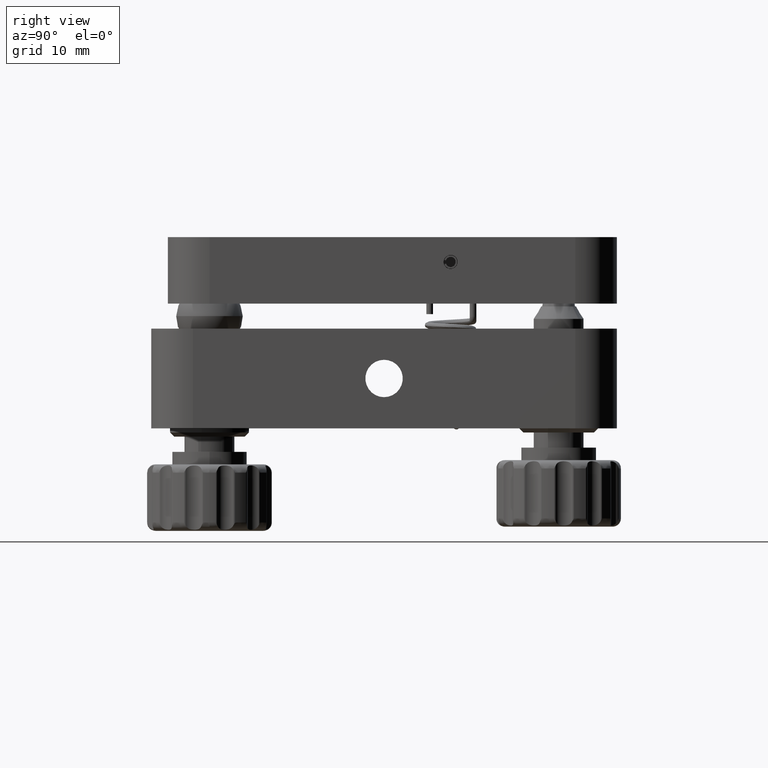
[diagram: clean part render]
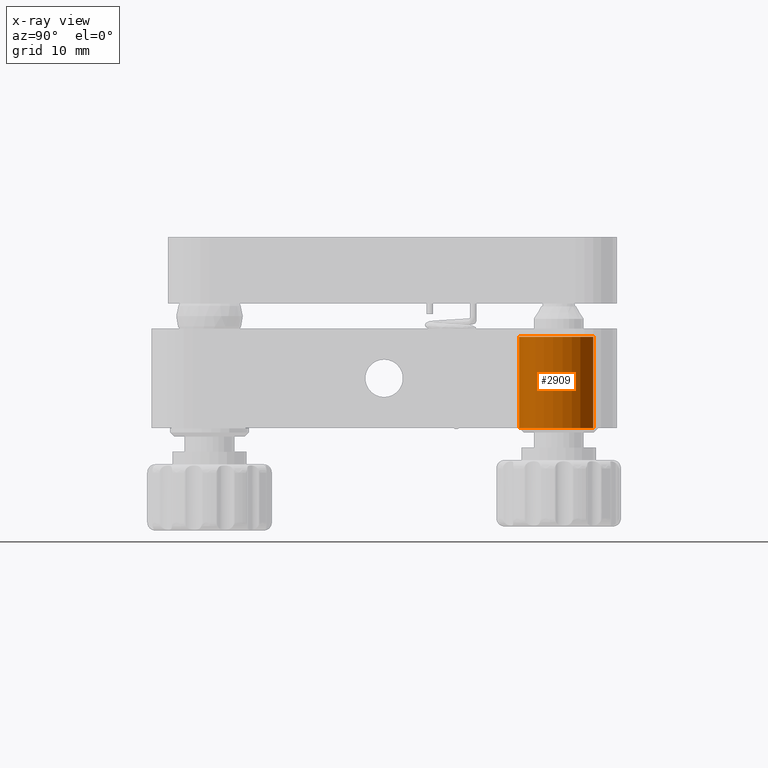
[diagram: x-ray — body ghosted, one internal face saturated and labeled with its STEP entity id]
A machine part, right view, then the same camera in x-ray: the body is ghosted and one INTERNAL B-rep face — a face not visible from any outside direction — is saturated and labeled: STEP entity #2909.
In plain terms, the highlighted cylindrical surface (partial cylindrical patch) has radius 4.75 mm, axis along (0, -0, -1).
Its self-contained STEP definition (entity closure, byte-faithful):
#217 = EDGE_CURVE ( 'NONE', #3678, #8140, #15132, .T. ) ;
#253 = DIRECTION ( 'NONE',  ( 0.4830605657912051500, 0.8755869401592745200, 3.652049423109069800E-016 ) ) ;
#512 = ORIENTED_EDGE ( 'NONE', *, *, #16612, .T. ) ;
#1275 = DIRECTION ( 'NONE',  ( -0.4830605657912051500, -0.8755869401592745200, -4.565061778886337000E-016 ) ) ;
#2028 = EDGE_CURVE ( 'NONE', #11996, #8140, #9428, .T. ) ;
#2190 = VECTOR ( 'NONE', #3617, 1000.000000000000000 ) ;
#2485 = CARTESIAN_POINT ( 'NONE',  ( 23.29477101199420700, 25.15931600136090700, -14.99315314868306900 ) ) ;
#2909 = ADVANCED_FACE ( 'NONE', ( #7638 ), #14302, .T. ) ;
#3068 = LINE ( 'NONE', #10046, #2190 ) ;
#3617 = DIRECTION ( 'NONE',  ( 1.694526129602619100E-015, -4.381124301417072700E-016, -1.000000000000000000 ) ) ;
#3678 = VERTEX_POINT ( 'NONE', #6650 ) ;
#4760 = CARTESIAN_POINT ( 'NONE',  ( 18.70569563697776200, 16.84124006984780700, -3.993153148683095600 ) ) ;
#5575 = AXIS2_PLACEMENT_3D ( 'NONE', #14642, #9332, #1275 ) ;
#5673 = AXIS2_PLACEMENT_3D ( 'NONE', #8210, #12211, #16479 ) ;
#6200 = VECTOR ( 'NONE', #13707, 1000.000000000000000 ) ;
#6650 = CARTESIAN_POINT ( 'NONE',  ( 23.29477101199420700, 25.15931600136090700, -3.993153148683092000 ) ) ;
#7008 = EDGE_LOOP ( 'NONE', ( #17024, #512, #14100, #14406 ) ) ;
#7638 = FACE_OUTER_BOUND ( 'NONE', #7008, .T. ) ;
#8140 = VERTEX_POINT ( 'NONE', #2485 ) ;
#8210 = CARTESIAN_POINT ( 'NONE',  ( 21.00023332448599700, 21.00027803560434600, -14.99315314868307100 ) ) ;
#9332 = DIRECTION ( 'NONE',  ( 1.694526129602619300E-015, -4.381124301417072700E-016, -1.000000000000000000 ) ) ;
#9428 = CIRCLE ( 'NONE', #5673, 4.749999999999997300 ) ;
#9594 = DIRECTION ( 'NONE',  ( 1.694526129602619300E-015, -4.381124301417072700E-016, -1.000000000000000000 ) ) ;
#10046 = CARTESIAN_POINT ( 'NONE',  ( 18.70569563697775800, 16.84124006984781400, -3.493153148683092900 ) ) ;
#10915 = CARTESIAN_POINT ( 'NONE',  ( 18.70569563697776200, 16.84124006984780300, -14.99315314868307200 ) ) ;
#11996 = VERTEX_POINT ( 'NONE', #10915 ) ;
#12211 = DIRECTION ( 'NONE',  ( -1.694526129602619300E-015, 4.381124301417072700E-016, 1.000000000000000000 ) ) ;
#12333 = CARTESIAN_POINT ( 'NONE',  ( 23.29477101199420400, 25.15931600136092100, -3.493153148683088500 ) ) ;
#12397 = CIRCLE ( 'NONE', #15896, 4.749999999999997300 ) ;
#12627 = VERTEX_POINT ( 'NONE', #4760 ) ;
#12690 = EDGE_CURVE ( 'NONE', #12627, #11996, #3068, .T. ) ;
#13658 = CARTESIAN_POINT ( 'NONE',  ( 21.00023332448597600, 21.00027803560436000, -3.993153148683093800 ) ) ;
#13707 = DIRECTION ( 'NONE',  ( 1.694526129602619100E-015, -4.381124301417072700E-016, -1.000000000000000000 ) ) ;
#14100 = ORIENTED_EDGE ( 'NONE', *, *, #12690, .T. ) ;
#14302 = CYLINDRICAL_SURFACE ( 'NONE', #5575, 4.749999999999997300 ) ;
#14406 = ORIENTED_EDGE ( 'NONE', *, *, #2028, .T. ) ;
#14642 = CARTESIAN_POINT ( 'NONE',  ( 21.00023332448597900, 21.00027803560436700, -3.493153148683090700 ) ) ;
#15132 = LINE ( 'NONE', #12333, #6200 ) ;
#15896 = AXIS2_PLACEMENT_3D ( 'NONE', #13658, #9594, #253 ) ;
#16479 = DIRECTION ( 'NONE',  ( 0.4830605657912051500, 0.8755869401592745200, 3.652049423109069800E-016 ) ) ;
#16612 = EDGE_CURVE ( 'NONE', #3678, #12627, #12397, .T. ) ;
#17024 = ORIENTED_EDGE ( 'NONE', *, *, #217, .F. ) ;